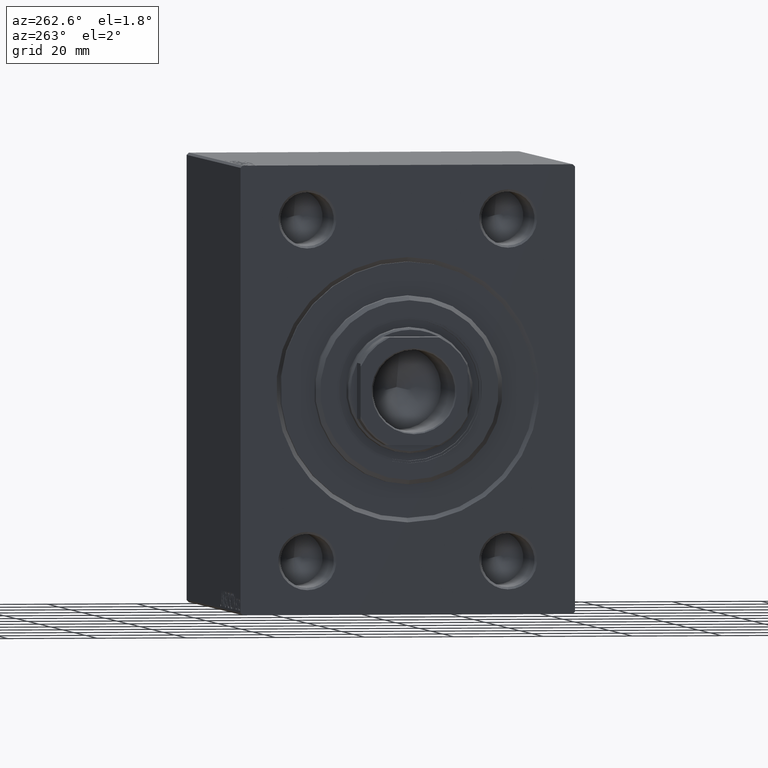
[diagram: clean part render]
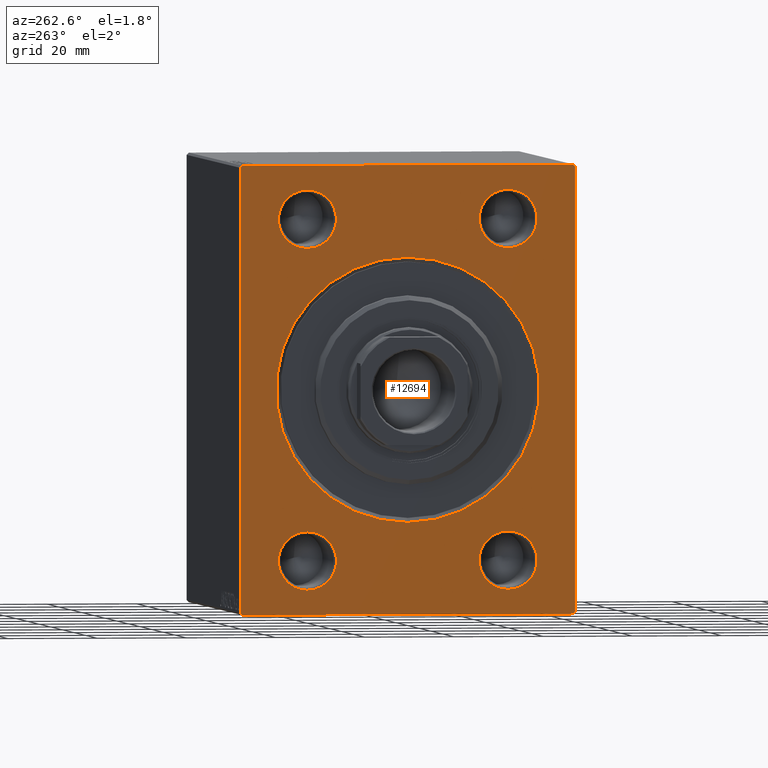
[diagram: same view with one face highlighted and labeled with its STEP entity id]
A machine part, auxiliary view. The second image highlights one B-rep face of the part: STEP entity #12694.
In plain terms, the highlighted planar face has unit normal (1, 0, 0).
Its self-contained STEP definition (entity closure, byte-faithful):
#376 = AXIS2_PLACEMENT_3D ( 'NONE', #4954, #21594, #35084 ) ;
#1423 = VERTEX_POINT ( 'NONE', #29668 ) ;
#1591 = CARTESIAN_POINT ( 'NONE',  ( 0.000000000000000000, 37.00000000000002132, 50.00000000000000711 ) ) ;
#1617 = CIRCLE ( 'NONE', #26716, 29.50000000000002842 ) ;
#1799 = EDGE_CURVE ( 'NONE', #11366, #30132, #6959, .T. ) ;
#2006 = ORIENTED_EDGE ( 'NONE', *, *, #17913, .T. ) ;
#2299 = LINE ( 'NONE', #44211, #22993 ) ;
#2705 = CARTESIAN_POINT ( 'NONE',  ( 0.000000000000000000, -22.50000000000000000, 37.99999999999999289 ) ) ;
#2766 = VECTOR ( 'NONE', #36924, 1000.000000000000000 ) ;
#4015 = ORIENTED_EDGE ( 'NONE', *, *, #39974, .T. ) ;
#4205 = CARTESIAN_POINT ( 'NONE',  ( 0.000000000000000000, 37.50000000000000711, -49.50000000000001421 ) ) ;
#4441 = DIRECTION ( 'NONE',  ( 1.000000000000000000, 0.000000000000000000, 0.000000000000000000 ) ) ;
#4824 = PLANE ( 'NONE',  #26266 ) ;
#4954 = CARTESIAN_POINT ( 'NONE',  ( 0.000000000000000000, 22.50000000000000000, -38.00000000000000711 ) ) ;
#4999 = CARTESIAN_POINT ( 'NONE',  ( 0.000000000000000000, 22.50000000000000000, -44.50000000000001421 ) ) ;
#5225 = EDGE_CURVE ( 'NONE', #18556, #25068, #29324, .T. ) ;
#5419 = DIRECTION ( 'NONE',  ( 1.000000000000000000, 0.000000000000000000, 0.000000000000000000 ) ) ;
#5565 = VERTEX_POINT ( 'NONE', #9887 ) ;
#6059 = CARTESIAN_POINT ( 'NONE',  ( 0.000000000000000000, -37.50000000000000000, 49.49999999999995026 ) ) ;
#6515 = CARTESIAN_POINT ( 'NONE',  ( 0.000000000000000000, 22.50000000000000000, 37.99999999999999289 ) ) ;
#6781 = EDGE_CURVE ( 'NONE', #37632, #21563, #44374, .T. ) ;
#6925 = CARTESIAN_POINT ( 'NONE',  ( 0.000000000000000000, -22.50000000000000000, 44.50000000000000000 ) ) ;
#6959 = LINE ( 'NONE', #24028, #10395 ) ;
#7381 = DIRECTION ( 'NONE',  ( 0.000000000000000000, -1.000000000000000000, -2.775557561562891844E-16 ) ) ;
#7577 = VERTEX_POINT ( 'NONE', #35965 ) ;
#7700 = DIRECTION ( 'NONE',  ( 0.000000000000000000, 0.000000000000000000, -1.000000000000000000 ) ) ;
#7924 = CARTESIAN_POINT ( 'NONE',  ( 0.000000000000000000, 22.50000000000000000, 37.99999999999999289 ) ) ;
#8070 = DIRECTION ( 'NONE',  ( -0.000000000000000000, 0.7071067811865426878, 0.7071067811865524577 ) ) ;
#8208 = DIRECTION ( 'NONE',  ( 1.000000000000000000, 0.000000000000000000, 0.000000000000000000 ) ) ;
#8509 = CARTESIAN_POINT ( 'NONE',  ( 0.000000000000000000, -37.50000000000000000, 49.49999999999995026 ) ) ;
#8651 = DIRECTION ( 'NONE',  ( 1.000000000000000000, 0.000000000000000000, 0.000000000000000000 ) ) ;
#9036 = FACE_OUTER_BOUND ( 'NONE', #22605, .T. ) ;
#9331 = LINE ( 'NONE', #43221, #19380 ) ;
#9438 = AXIS2_PLACEMENT_3D ( 'NONE', #2705, #29891, #33257 ) ;
#9887 = CARTESIAN_POINT ( 'NONE',  ( 0.000000000000000000, 3.612708057484695548E-15, -29.50000000000002842 ) ) ;
#9940 = EDGE_CURVE ( 'NONE', #22407, #10249, #10748, .T. ) ;
#10249 = VERTEX_POINT ( 'NONE', #35345 ) ;
#10395 = VECTOR ( 'NONE', #20662, 1000.000000000000000 ) ;
#10505 = EDGE_CURVE ( 'NONE', #5565, #1423, #22006, .T. ) ;
#10656 = CARTESIAN_POINT ( 'NONE',  ( 0.000000000000000000, -37.00000000000001421, -50.00000000000000000 ) ) ;
#10748 = LINE ( 'NONE', #38155, #20602 ) ;
#10763 = ORIENTED_EDGE ( 'NONE', *, *, #1799, .T. ) ;
#10867 = ORIENTED_EDGE ( 'NONE', *, *, #44010, .T. ) ;
#10911 = DIRECTION ( 'NONE',  ( 0.000000000000000000, 0.000000000000000000, -1.000000000000000000 ) ) ;
#11264 = CIRCLE ( 'NONE', #20571, 6.500000000000005329 ) ;
#11292 = DIRECTION ( 'NONE',  ( 1.000000000000000000, 0.000000000000000000, 0.000000000000000000 ) ) ;
#11366 = VERTEX_POINT ( 'NONE', #10656 ) ;
#11766 = VERTEX_POINT ( 'NONE', #13347 ) ;
#11922 = CARTESIAN_POINT ( 'NONE',  ( 0.000000000000000000, 22.50000000000000000, 31.49999999999998579 ) ) ;
#12529 = VECTOR ( 'NONE', #42924, 1000.000000000000000 ) ;
#12694 = ADVANCED_FACE ( 'NONE', ( #43148, #26103, #35611, #22733, #21683, #9036 ), #4824, .F. ) ;
#12726 = DIRECTION ( 'NONE',  ( 1.000000000000000000, 0.000000000000000000, 0.000000000000000000 ) ) ;
#12968 = AXIS2_PLACEMENT_3D ( 'NONE', #25981, #12726, #36312 ) ;
#13274 = EDGE_CURVE ( 'NONE', #11766, #28585, #11264, .T. ) ;
#13335 = CIRCLE ( 'NONE', #376, 6.500000000000005329 ) ;
#13347 = CARTESIAN_POINT ( 'NONE',  ( 0.000000000000000000, 22.50000000000000000, -31.50000000000000000 ) ) ;
#13439 = ORIENTED_EDGE ( 'NONE', *, *, #6781, .T. ) ;
#13757 = DIRECTION ( 'NONE',  ( 0.000000000000000000, 0.000000000000000000, -1.000000000000000000 ) ) ;
#14745 = VERTEX_POINT ( 'NONE', #21285 ) ;
#15085 = CARTESIAN_POINT ( 'NONE',  ( 0.000000000000000000, 0.000000000000000000, 0.000000000000000000 ) ) ;
#15287 = EDGE_CURVE ( 'NONE', #21563, #37632, #31375, .T. ) ;
#15466 = ORIENTED_EDGE ( 'NONE', *, *, #5225, .T. ) ;
#16686 = ORIENTED_EDGE ( 'NONE', *, *, #10505, .T. ) ;
#16724 = LINE ( 'NONE', #30412, #2766 ) ;
#17913 = EDGE_CURVE ( 'NONE', #22407, #39289, #16724, .T. ) ;
#17966 = LINE ( 'NONE', #8509, #43956 ) ;
#18158 = DIRECTION ( 'NONE',  ( 0.000000000000000000, 0.000000000000000000, -1.000000000000000000 ) ) ;
#18510 = VERTEX_POINT ( 'NONE', #4205 ) ;
#18556 = VERTEX_POINT ( 'NONE', #6925 ) ;
#18919 = AXIS2_PLACEMENT_3D ( 'NONE', #31215, #23808, #43996 ) ;
#19140 = CARTESIAN_POINT ( 'NONE',  ( 0.000000000000000000, 37.50000000000000711, -49.50000000000001421 ) ) ;
#19380 = VECTOR ( 'NONE', #28887, 1000.000000000000000 ) ;
#19580 = CARTESIAN_POINT ( 'NONE',  ( 0.000000000000000000, 0.000000000000000000, 0.000000000000000000 ) ) ;
#20113 = CIRCLE ( 'NONE', #12968, 6.500000000000005329 ) ;
#20571 = AXIS2_PLACEMENT_3D ( 'NONE', #35229, #4441, #18158 ) ;
#20602 = VECTOR ( 'NONE', #7381, 1000.000000000000000 ) ;
#20662 = DIRECTION ( 'NONE',  ( -0.000000000000000000, -0.7071067811865378028, 0.7071067811865573427 ) ) ;
#21285 = CARTESIAN_POINT ( 'NONE',  ( 0.000000000000000000, -22.50000000000000000, -44.50000000000001421 ) ) ;
#21357 = ORIENTED_EDGE ( 'NONE', *, *, #32987, .F. ) ;
#21563 = VERTEX_POINT ( 'NONE', #26010 ) ;
#21594 = DIRECTION ( 'NONE',  ( 1.000000000000000000, 0.000000000000000000, 0.000000000000000000 ) ) ;
#21683 = FACE_BOUND ( 'NONE', #25011, .T. ) ;
#21800 = ORIENTED_EDGE ( 'NONE', *, *, #39006, .T. ) ;
#21870 = EDGE_CURVE ( 'NONE', #11366, #7577, #9331, .T. ) ;
#22006 = CIRCLE ( 'NONE', #23482, 29.50000000000002842 ) ;
#22407 = VERTEX_POINT ( 'NONE', #1591 ) ;
#22605 = EDGE_LOOP ( 'NONE', ( #24579, #4015, #27976, #2006, #21357, #10867, #36772, #10763 ) ) ;
#22733 = FACE_BOUND ( 'NONE', #41253, .T. ) ;
#22993 = VECTOR ( 'NONE', #29490, 1000.000000000000000 ) ;
#23123 = ORIENTED_EDGE ( 'NONE', *, *, #34361, .T. ) ;
#23482 = AXIS2_PLACEMENT_3D ( 'NONE', #15085, #24951, #28994 ) ;
#23668 = EDGE_CURVE ( 'NONE', #14745, #41392, #20113, .T. ) ;
#23764 = CARTESIAN_POINT ( 'NONE',  ( 0.000000000000000000, -22.50000000000000000, -31.50000000000000000 ) ) ;
#23808 = DIRECTION ( 'NONE',  ( 1.000000000000000000, 0.000000000000000000, 0.000000000000000000 ) ) ;
#23849 = EDGE_LOOP ( 'NONE', ( #15466, #37531 ) ) ;
#24028 = CARTESIAN_POINT ( 'NONE',  ( 0.000000000000000000, -37.00000000000001421, -50.00000000000000000 ) ) ;
#24579 = ORIENTED_EDGE ( 'NONE', *, *, #28738, .F. ) ;
#24951 = DIRECTION ( 'NONE',  ( 1.000000000000000000, 0.000000000000000000, 0.000000000000000000 ) ) ;
#25011 = EDGE_LOOP ( 'NONE', ( #35710, #21800 ) ) ;
#25068 = VERTEX_POINT ( 'NONE', #43281 ) ;
#25723 = CARTESIAN_POINT ( 'NONE',  ( 0.000000000000000000, -22.50000000000000000, 37.99999999999999289 ) ) ;
#25981 = CARTESIAN_POINT ( 'NONE',  ( 0.000000000000000000, -22.50000000000000000, -38.00000000000000711 ) ) ;
#26010 = CARTESIAN_POINT ( 'NONE',  ( 0.000000000000000000, 22.50000000000000000, 44.50000000000000000 ) ) ;
#26103 = FACE_BOUND ( 'NONE', #37419, .T. ) ;
#26266 = AXIS2_PLACEMENT_3D ( 'NONE', #36439, #8208, #10911 ) ;
#26594 = LINE ( 'NONE', #33112, #28895 ) ;
#26716 = AXIS2_PLACEMENT_3D ( 'NONE', #19580, #5419, #43135 ) ;
#26964 = EDGE_LOOP ( 'NONE', ( #23123, #16686 ) ) ;
#27976 = ORIENTED_EDGE ( 'NONE', *, *, #9940, .F. ) ;
#28067 = CIRCLE ( 'NONE', #9438, 6.500000000000005329 ) ;
#28585 = VERTEX_POINT ( 'NONE', #4999 ) ;
#28738 = EDGE_CURVE ( 'NONE', #36947, #30132, #2299, .T. ) ;
#28887 = DIRECTION ( 'NONE',  ( 0.000000000000000000, 1.000000000000000000, 0.000000000000000000 ) ) ;
#28895 = VECTOR ( 'NONE', #33789, 1000.000000000000000 ) ;
#28994 = DIRECTION ( 'NONE',  ( 0.000000000000000000, 0.000000000000000000, -1.000000000000000000 ) ) ;
#29162 = CARTESIAN_POINT ( 'NONE',  ( 0.000000000000000000, 37.49999999999999289, 49.50000000000002842 ) ) ;
#29324 = CIRCLE ( 'NONE', #37221, 6.500000000000005329 ) ;
#29490 = DIRECTION ( 'NONE',  ( 0.000000000000000000, 0.000000000000000000, -1.000000000000000000 ) ) ;
#29668 = CARTESIAN_POINT ( 'NONE',  ( 0.000000000000000000, 0.000000000000000000, 29.50000000000002842 ) ) ;
#29891 = DIRECTION ( 'NONE',  ( 1.000000000000000000, 0.000000000000000000, 0.000000000000000000 ) ) ;
#30056 = EDGE_CURVE ( 'NONE', #25068, #18556, #28067, .T. ) ;
#30132 = VERTEX_POINT ( 'NONE', #31006 ) ;
#30336 = DIRECTION ( 'NONE',  ( 1.000000000000000000, 0.000000000000000000, 0.000000000000000000 ) ) ;
#30412 = CARTESIAN_POINT ( 'NONE',  ( 0.000000000000000000, 37.00000000000002132, 50.00000000000000711 ) ) ;
#31006 = CARTESIAN_POINT ( 'NONE',  ( 0.000000000000000000, -37.50000000000000000, -49.49999999999997158 ) ) ;
#31215 = CARTESIAN_POINT ( 'NONE',  ( 0.000000000000000000, -22.50000000000000000, -38.00000000000000711 ) ) ;
#31375 = CIRCLE ( 'NONE', #36408, 6.500000000000005329 ) ;
#31678 = ORIENTED_EDGE ( 'NONE', *, *, #37758, .T. ) ;
#32987 = EDGE_CURVE ( 'NONE', #18510, #39289, #26594, .T. ) ;
#33112 = CARTESIAN_POINT ( 'NONE',  ( 0.000000000000000000, 37.50000000000000711, -50.00000000000000000 ) ) ;
#33257 = DIRECTION ( 'NONE',  ( 0.000000000000000000, 0.000000000000000000, -1.000000000000000000 ) ) ;
#33789 = DIRECTION ( 'NONE',  ( 0.000000000000000000, -1.387778780781445676E-16, 1.000000000000000000 ) ) ;
#34361 = EDGE_CURVE ( 'NONE', #1423, #5565, #1617, .T. ) ;
#35084 = DIRECTION ( 'NONE',  ( 0.000000000000000000, 0.000000000000000000, -1.000000000000000000 ) ) ;
#35229 = CARTESIAN_POINT ( 'NONE',  ( 0.000000000000000000, 22.50000000000000000, -38.00000000000000711 ) ) ;
#35345 = CARTESIAN_POINT ( 'NONE',  ( 0.000000000000000000, -36.99999999999996447, 49.99999999999998579 ) ) ;
#35611 = FACE_BOUND ( 'NONE', #23849, .T. ) ;
#35710 = ORIENTED_EDGE ( 'NONE', *, *, #13274, .T. ) ;
#35965 = CARTESIAN_POINT ( 'NONE',  ( 0.000000000000000000, 37.00000000000000000, -50.00000000000000000 ) ) ;
#36312 = DIRECTION ( 'NONE',  ( 0.000000000000000000, 0.000000000000000000, -1.000000000000000000 ) ) ;
#36408 = AXIS2_PLACEMENT_3D ( 'NONE', #7924, #11292, #7700 ) ;
#36439 = CARTESIAN_POINT ( 'NONE',  ( 0.000000000000000000, 0.000000000000000000, 0.000000000000000000 ) ) ;
#36772 = ORIENTED_EDGE ( 'NONE', *, *, #21870, .F. ) ;
#36924 = DIRECTION ( 'NONE',  ( -0.000000000000000000, 0.7071067811865426878, -0.7071067811865524577 ) ) ;
#36947 = VERTEX_POINT ( 'NONE', #6059 ) ;
#37221 = AXIS2_PLACEMENT_3D ( 'NONE', #25723, #8651, #13757 ) ;
#37419 = EDGE_LOOP ( 'NONE', ( #31678, #38126 ) ) ;
#37531 = ORIENTED_EDGE ( 'NONE', *, *, #30056, .T. ) ;
#37586 = CIRCLE ( 'NONE', #18919, 6.500000000000005329 ) ;
#37632 = VERTEX_POINT ( 'NONE', #11922 ) ;
#37758 = EDGE_CURVE ( 'NONE', #41392, #14745, #37586, .T. ) ;
#37760 = AXIS2_PLACEMENT_3D ( 'NONE', #6515, #30336, #40424 ) ;
#38126 = ORIENTED_EDGE ( 'NONE', *, *, #23668, .T. ) ;
#38155 = CARTESIAN_POINT ( 'NONE',  ( 0.000000000000000000, 37.49999999999999289, 50.00000000000000711 ) ) ;
#39006 = EDGE_CURVE ( 'NONE', #28585, #11766, #13335, .T. ) ;
#39289 = VERTEX_POINT ( 'NONE', #29162 ) ;
#39787 = LINE ( 'NONE', #19140, #12529 ) ;
#39974 = EDGE_CURVE ( 'NONE', #36947, #10249, #17966, .T. ) ;
#40424 = DIRECTION ( 'NONE',  ( 0.000000000000000000, 0.000000000000000000, -1.000000000000000000 ) ) ;
#41253 = EDGE_LOOP ( 'NONE', ( #42792, #13439 ) ) ;
#41392 = VERTEX_POINT ( 'NONE', #23764 ) ;
#42792 = ORIENTED_EDGE ( 'NONE', *, *, #15287, .T. ) ;
#42924 = DIRECTION ( 'NONE',  ( 0.000000000000000000, -0.7071067811865622277, -0.7071067811865328068 ) ) ;
#43135 = DIRECTION ( 'NONE',  ( 0.000000000000000000, 0.000000000000000000, -1.000000000000000000 ) ) ;
#43148 = FACE_BOUND ( 'NONE', #26964, .T. ) ;
#43221 = CARTESIAN_POINT ( 'NONE',  ( 0.000000000000000000, -37.50000000000000000, -50.00000000000000000 ) ) ;
#43281 = CARTESIAN_POINT ( 'NONE',  ( 0.000000000000000000, -22.50000000000000000, 31.49999999999998579 ) ) ;
#43956 = VECTOR ( 'NONE', #8070, 1000.000000000000000 ) ;
#43996 = DIRECTION ( 'NONE',  ( 0.000000000000000000, 0.000000000000000000, -1.000000000000000000 ) ) ;
#44010 = EDGE_CURVE ( 'NONE', #18510, #7577, #39787, .T. ) ;
#44211 = CARTESIAN_POINT ( 'NONE',  ( 0.000000000000000000, -37.50000000000000000, 49.99999999999998579 ) ) ;
#44374 = CIRCLE ( 'NONE', #37760, 6.500000000000005329 ) ;